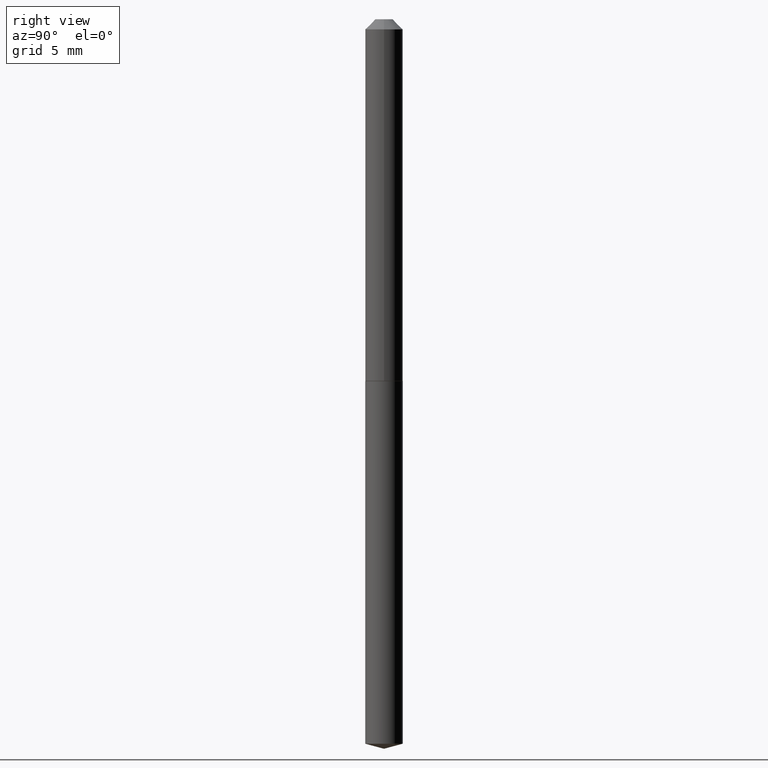
[diagram: clean part render]
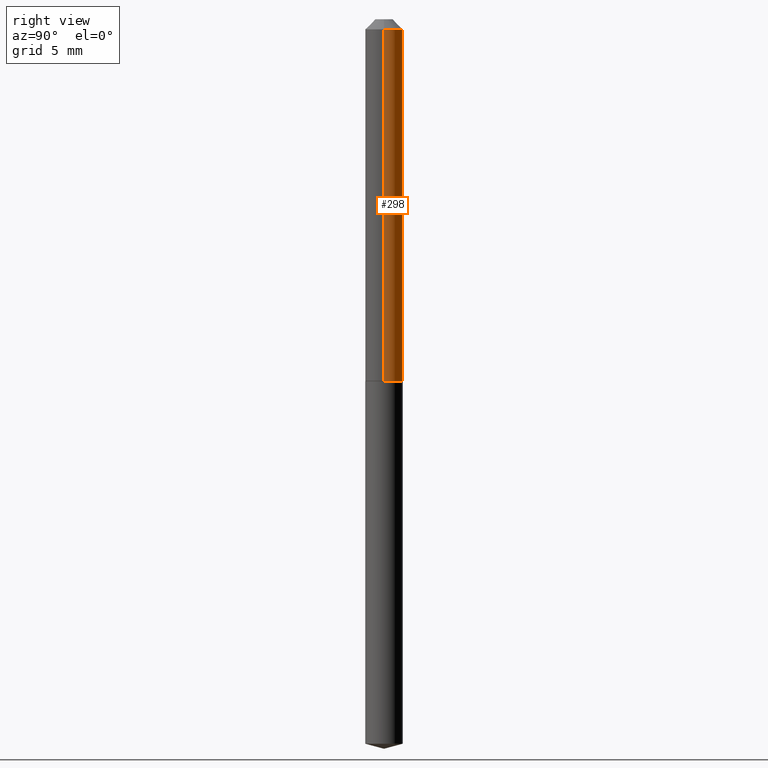
[diagram: same view with one face highlighted and labeled with its STEP entity id]
A machine part, right view. The second image highlights one B-rep face of the part: STEP entity #298.
In plain terms, the highlighted cylindrical surface (edge-blend (fillet) strip) has radius 1.4732 mm, axis along (-0, 0, 1).
Its self-contained STEP definition (entity closure, byte-faithful):
#16 = VERTEX_POINT ( 'NONE', #343 ) ;
#25 = DIRECTION ( 'NONE',  ( -2.445468806185136877E-29, 3.491481338843145188E-15, 1.000000000000000000 ) ) ;
#46 = DIRECTION ( 'NONE',  ( 1.000000000000000000, -6.982962677686266711E-15, 0.000000000000000000 ) ) ;
#48 = DIRECTION ( 'NONE',  ( -2.445468806185136877E-29, 3.491481338843145188E-15, 1.000000000000000000 ) ) ;
#49 = CARTESIAN_POINT ( 'NONE',  ( -0.05800000000000014172, -3.482632646738670605E-15, -1.115500000000000158 ) ) ;
#55 = VERTEX_POINT ( 'NONE', #216 ) ;
#63 = EDGE_CURVE ( 'NONE', #352, #55, #313, .T. ) ;
#69 = FACE_OUTER_BOUND ( 'NONE', #390, .T. ) ;
#70 = VECTOR ( 'NONE', #48, 39.37007874015748143 ) ;
#80 = CARTESIAN_POINT ( 'NONE',  ( 0.000000000000000000, 0.000000000000000000, 0.000000000000000000 ) ) ;
#87 = ORIENTED_EDGE ( 'NONE', *, *, #183, .F. ) ;
#125 = CYLINDRICAL_SURFACE ( 'NONE', #356, 0.05800000000000007233 ) ;
#138 = CIRCLE ( 'NONE', #240, 0.05800000000000000294 ) ;
#139 = AXIS2_PLACEMENT_3D ( 'NONE', #366, #336, #312 ) ;
#149 = CIRCLE ( 'NONE', #139, 0.05800000000000014172 ) ;
#160 = DIRECTION ( 'NONE',  ( 1.000000000000000000, -6.982962677686266711E-15, 4.876176775795935793E-29 ) ) ;
#166 = CARTESIAN_POINT ( 'NONE',  ( -0.05800000000000007233, 4.121147867408586217E-16, -2.852982352347848756E-30 ) ) ;
#183 = EDGE_CURVE ( 'NONE', #269, #16, #234, .T. ) ;
#191 = DIRECTION ( 'NONE',  ( -2.445468806185136597E-29, 3.491481338843145583E-15, 1.000000000000000000 ) ) ;
#216 = CARTESIAN_POINT ( 'NONE',  ( -0.05800000000000000294, -1.589813325918329827E-15, -0.03125000000000020817 ) ) ;
#222 = DIRECTION ( 'NONE',  ( -2.445468806185136597E-29, 3.491481338843145583E-15, 1.000000000000000000 ) ) ;
#231 = ORIENTED_EDGE ( 'NONE', *, *, #63, .T. ) ;
#234 = LINE ( 'NONE', #322, #292 ) ;
#240 = AXIS2_PLACEMENT_3D ( 'NONE', #374, #191, #46 ) ;
#269 = VERTEX_POINT ( 'NONE', #277 ) ;
#277 = CARTESIAN_POINT ( 'NONE',  ( 0.05800000000000014172, -4.299759268785333684E-15, -1.115500000000000158 ) ) ;
#292 = VECTOR ( 'NONE', #25, 39.37007874015748143 ) ;
#298 = ADVANCED_FACE ( 'NONE', ( #69 ), #125, .T. ) ;
#312 = DIRECTION ( 'NONE',  ( 1.000000000000000000, -6.982962677686265922E-15, 0.000000000000000000 ) ) ;
#313 = LINE ( 'NONE', #166, #70 ) ;
#322 = CARTESIAN_POINT ( 'NONE',  ( 0.05800000000000007233, -4.050118353058039642E-16, 2.828182529961646347E-30 ) ) ;
#324 = ORIENTED_EDGE ( 'NONE', *, *, #385, .F. ) ;
#325 = ORIENTED_EDGE ( 'NONE', *, *, #369, .T. ) ;
#336 = DIRECTION ( 'NONE',  ( -2.445468806185136597E-29, 3.491481338843145583E-15, 1.000000000000000000 ) ) ;
#343 = CARTESIAN_POINT ( 'NONE',  ( 0.05800000000000000294, -5.141206271446525225E-16, -0.03125000000000020817 ) ) ;
#352 = VERTEX_POINT ( 'NONE', #49 ) ;
#356 = AXIS2_PLACEMENT_3D ( 'NONE', #80, #222, #160 ) ;
#366 = CARTESIAN_POINT ( 'NONE',  ( 2.727920453299520488E-29, -3.894747433479529868E-15, -1.115500000000000158 ) ) ;
#369 = EDGE_CURVE ( 'NONE', #269, #352, #149, .T. ) ;
#374 = CARTESIAN_POINT ( 'NONE',  ( 7.642090019328602662E-31, -1.091087918388490267E-16, -0.03125000000000020817 ) ) ;
#385 = EDGE_CURVE ( 'NONE', #16, #55, #138, .T. ) ;
#390 = EDGE_LOOP ( 'NONE', ( #325, #231, #324, #87 ) ) ;